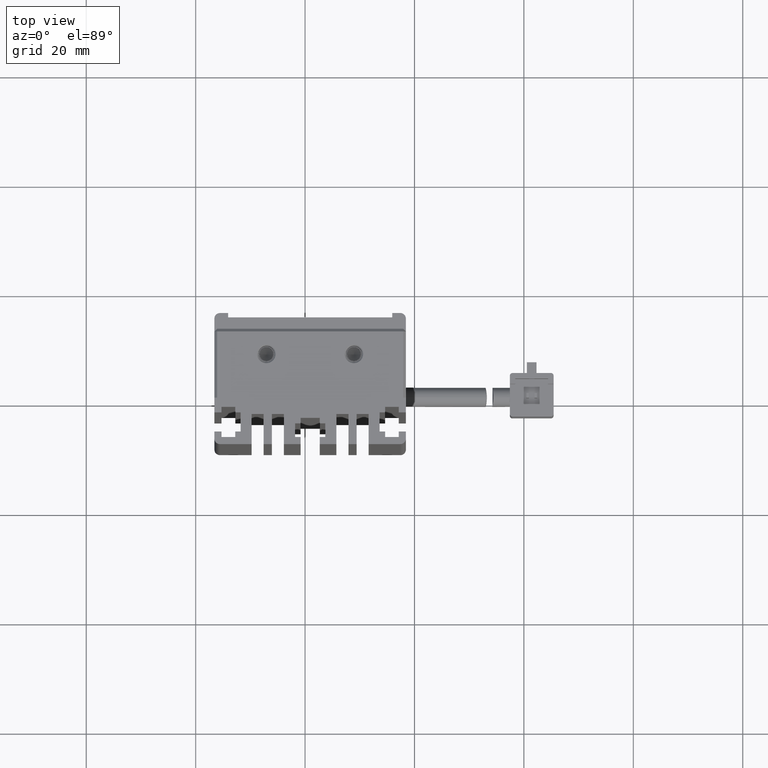
[diagram: clean part render]
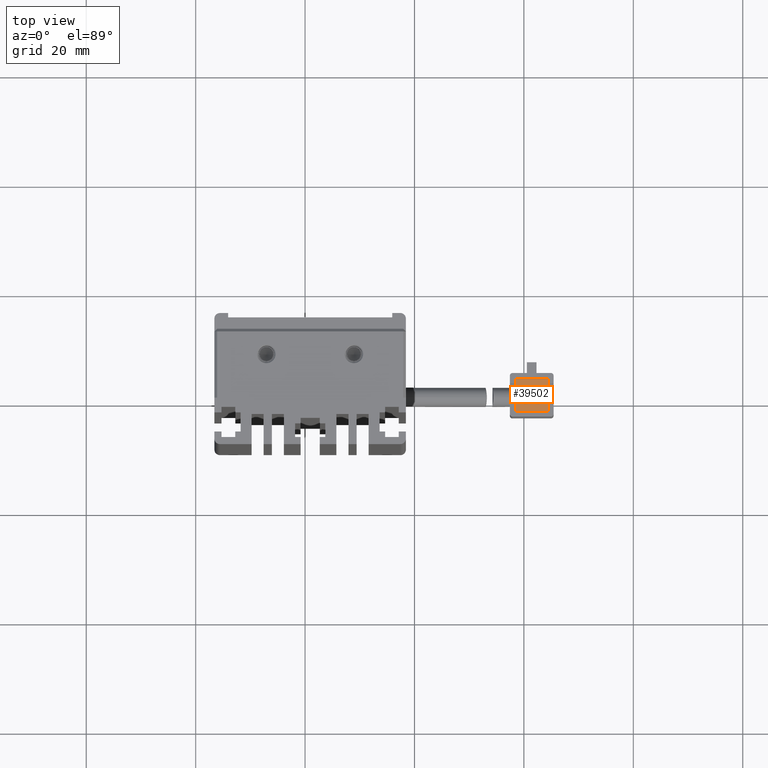
[diagram: same view with one face highlighted and labeled with its STEP entity id]
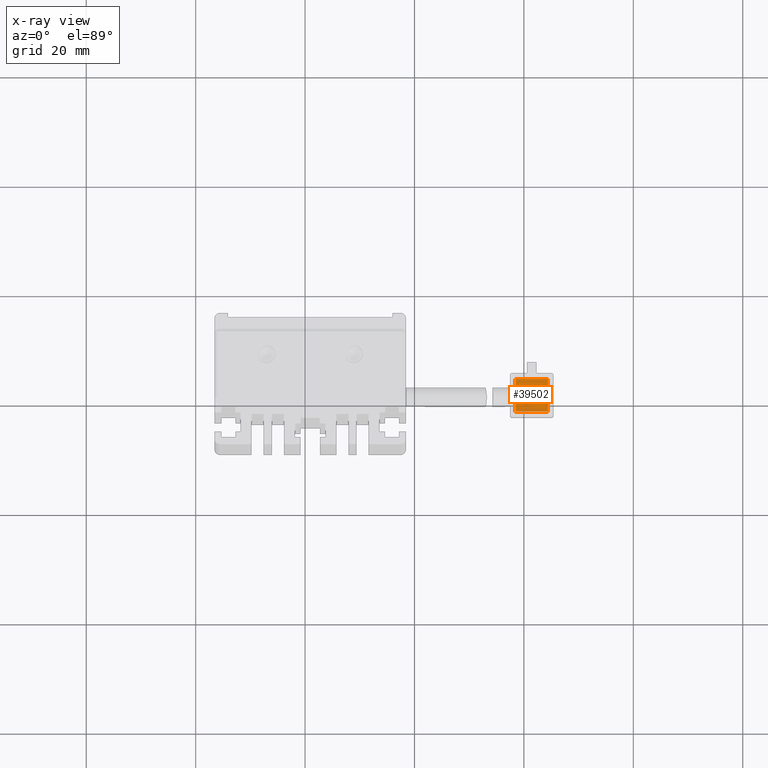
[diagram: x-ray of the same camera — body ghosted, the highlighted face saturated]
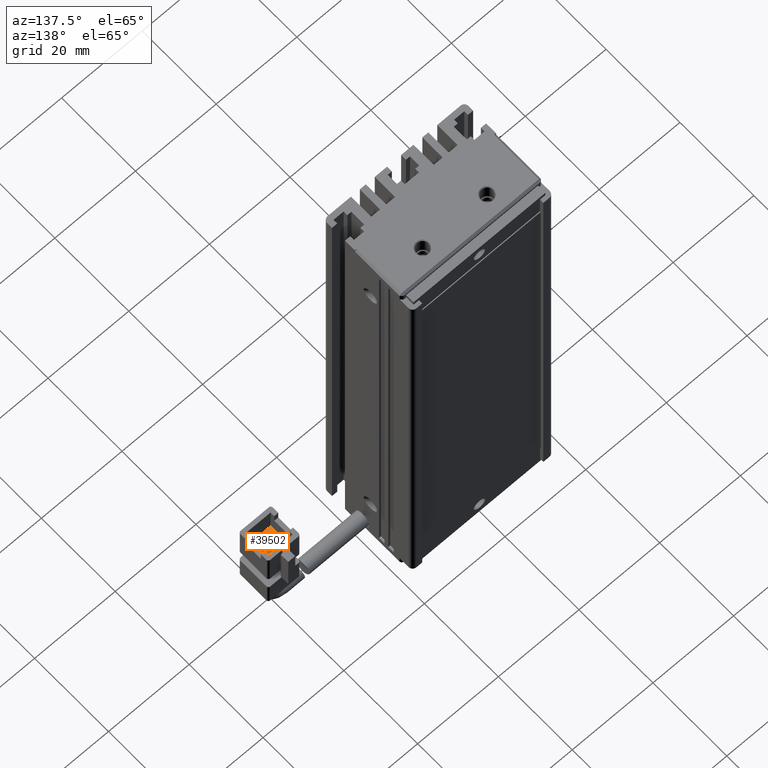
[diagram: same view with one face highlighted and labeled with its STEP entity id]
A machine part, top view. The second image highlights one B-rep face of the part: STEP entity #39502.
The next image is the same camera in x-ray: the body ghosted, the highlighted face saturated — about 0% of this face is hidden behind the body in this view.
A second angle (auxiliary view) of the same face is appended — the face is thin or edge-on in the first view.
In plain terms, the highlighted planar face has unit normal (-0, 0, 1).
Its self-contained STEP definition (entity closure, byte-faithful):
#273 = ORIENTED_EDGE ( 'NONE', *, *, #32258, .T. ) ;
#889 = VERTEX_POINT ( 'NONE', #18756 ) ;
#2838 = ORIENTED_EDGE ( 'NONE', *, *, #14417, .T. ) ;
#3005 = LINE ( 'NONE', #31847, #46675 ) ;
#3463 = CARTESIAN_POINT ( 'NONE',  ( 84.42537974683534700, 24.49073232304861500, -148.9499999999999900 ) ) ;
#4889 = VERTEX_POINT ( 'NONE', #16392 ) ;
#5254 = VECTOR ( 'NONE', #36354, 1000.000000000000000 ) ;
#5587 = VECTOR ( 'NONE', #27814, 1000.000000000000000 ) ;
#5922 = ORIENTED_EDGE ( 'NONE', *, *, #50509, .T. ) ;
#6190 = CARTESIAN_POINT ( 'NONE',  ( 80.42537974683536100, 20.97747452075594100, -148.9499999999999900 ) ) ;
#6196 = EDGE_LOOP ( 'NONE', ( #273, #40966, #2838, #52575 ) ) ;
#6251 = CARTESIAN_POINT ( 'NONE',  ( 82.42537974683536100, 21.77747452075595200, -148.9499999999999900 ) ) ;
#7467 = VERTEX_POINT ( 'NONE', #30469 ) ;
#7716 = EDGE_CURVE ( 'NONE', #19453, #39101, #26910, .T. ) ;
#8352 = CARTESIAN_POINT ( 'NONE',  ( 80.92537974683537500, 18.49073232304860100, -148.9499999999999900 ) ) ;
#10316 = ORIENTED_EDGE ( 'NONE', *, *, #16495, .T. ) ;
#10608 = CARTESIAN_POINT ( 'NONE',  ( 81.92537974683536100, 20.97747452075594800, -148.9499999999999900 ) ) ;
#11447 = VECTOR ( 'NONE', #20581, 1000.000000000000000 ) ;
#11582 = CARTESIAN_POINT ( 'NONE',  ( 81.92537974683536100, 20.97747452075594800, -148.9499999999999900 ) ) ;
#12602 = FACE_BOUND ( 'NONE', #13999, .T. ) ;
#12907 = CARTESIAN_POINT ( 'NONE',  ( 78.42537974683536100, 24.49073232304859700, -148.9499999999999900 ) ) ;
#13436 = LINE ( 'NONE', #12907, #35325 ) ;
#13999 = EDGE_LOOP ( 'NONE', ( #42103, #46184, #35709, #29491 ) ) ;
#14417 = EDGE_CURVE ( 'NONE', #53907, #7467, #27050, .T. ) ;
#14824 = DIRECTION ( 'NONE',  ( 1.000000000000000000, 3.593355771666238000E-015, 8.418767155934777700E-031 ) ) ;
#15926 = VERTEX_POINT ( 'NONE', #22930 ) ;
#16392 = CARTESIAN_POINT ( 'NONE',  ( 80.92537974683536100, 21.77747452075594500, -148.9499999999999900 ) ) ;
#16495 = EDGE_CURVE ( 'NONE', #54469, #889, #30353, .T. ) ;
#16816 = AXIS2_PLACEMENT_3D ( 'NONE', #22149, #18649, #26767 ) ;
#17174 = CARTESIAN_POINT ( 'NONE',  ( 78.42537974683537500, 18.49073232304859000, -148.9499999999999900 ) ) ;
#17782 = VERTEX_POINT ( 'NONE', #6251 ) ;
#18315 = EDGE_CURVE ( 'NONE', #39101, #17782, #40362, .T. ) ;
#18649 = DIRECTION ( 'NONE',  ( -1.041348031262155300E-030, 5.551115123125780200E-017, 1.000000000000000000 ) ) ;
#18756 = CARTESIAN_POINT ( 'NONE',  ( 84.42537974683537500, 18.49073232304861100, -148.9499999999999900 ) ) ;
#19151 = CARTESIAN_POINT ( 'NONE',  ( 84.42537974683534700, 24.49073232304861500, -148.9499999999999900 ) ) ;
#19453 = VERTEX_POINT ( 'NONE', #11582 ) ;
#20005 = VECTOR ( 'NONE', #22967, 1000.000000000000000 ) ;
#20581 = DIRECTION ( 'NONE',  ( 3.304235192336770000E-015, -1.000000000000000000, 5.551115123125780200E-017 ) ) ;
#20619 = EDGE_CURVE ( 'NONE', #4889, #53907, #37931, .T. ) ;
#21780 = VERTEX_POINT ( 'NONE', #29480 ) ;
#22149 = CARTESIAN_POINT ( 'NONE',  ( 78.42537974683537500, 18.49073232304859000, -148.9499999999999900 ) ) ;
#22199 = VERTEX_POINT ( 'NONE', #3463 ) ;
#22930 = CARTESIAN_POINT ( 'NONE',  ( 80.42537974683536100, 21.77747452075594500, -148.9499999999999900 ) ) ;
#22967 = DIRECTION ( 'NONE',  ( 3.304235192336770000E-015, -1.000000000000000000, 5.551115123125780200E-017 ) ) ;
#23244 = FACE_OUTER_BOUND ( 'NONE', #40749, .T. ) ;
#23446 = DIRECTION ( 'NONE',  ( -1.000000000000000000, -3.304235192336770000E-015, -8.579261317967046800E-031 ) ) ;
#23467 = EDGE_CURVE ( 'NONE', #17782, #38658, #31243, .T. ) ;
#23531 = ORIENTED_EDGE ( 'NONE', *, *, #52939, .T. ) ;
#24662 = CARTESIAN_POINT ( 'NONE',  ( 80.42537974683536100, 21.77747452075594500, -148.9499999999999900 ) ) ;
#26210 = DIRECTION ( 'NONE',  ( 1.000000000000000000, 3.412655409585320400E-015, 8.519076007204945700E-031 ) ) ;
#26637 = CARTESIAN_POINT ( 'NONE',  ( 82.42537974683537500, 18.49073232304860400, -148.9499999999999900 ) ) ;
#26767 = DIRECTION ( 'NONE',  ( 1.000000000000000000, 3.304235192336770000E-015, 8.579261317967046800E-031 ) ) ;
#26910 = LINE ( 'NONE', #39879, #37552 ) ;
#27050 = LINE ( 'NONE', #6190, #32345 ) ;
#27215 = EDGE_CURVE ( 'NONE', #7467, #15926, #51375, .T. ) ;
#27502 = DIRECTION ( 'NONE',  ( -3.439760463897458000E-015, 1.000000000000000000, -5.551115123125780200E-017 ) ) ;
#27814 = DIRECTION ( 'NONE',  ( -1.000000000000000000, -3.304235192336770000E-015, -8.579261317967046800E-031 ) ) ;
#28076 = CARTESIAN_POINT ( 'NONE',  ( 81.92537974683536100, 21.77747452075594800, -148.9499999999999900 ) ) ;
#28139 = LINE ( 'NONE', #10608, #5587 ) ;
#29480 = CARTESIAN_POINT ( 'NONE',  ( 78.42537974683534700, 24.49073232304859700, -148.9499999999999900 ) ) ;
#29491 = ORIENTED_EDGE ( 'NONE', *, *, #7716, .T. ) ;
#30353 = LINE ( 'NONE', #44242, #48208 ) ;
#30469 = CARTESIAN_POINT ( 'NONE',  ( 80.42537974683536100, 20.97747452075594100, -148.9499999999999900 ) ) ;
#31243 = LINE ( 'NONE', #26637, #20005 ) ;
#31847 = CARTESIAN_POINT ( 'NONE',  ( 78.42537974683537500, 18.49073232304859000, -148.9499999999999900 ) ) ;
#32205 = DIRECTION ( 'NONE',  ( 3.304235192336770000E-015, -1.000000000000000000, 5.551115123125780200E-017 ) ) ;
#32258 = EDGE_CURVE ( 'NONE', #15926, #4889, #37819, .T. ) ;
#32345 = VECTOR ( 'NONE', #23446, 1000.000000000000000 ) ;
#34745 = DIRECTION ( 'NONE',  ( -1.000000000000000000, -3.304235192336770000E-015, -8.579261317967046800E-031 ) ) ;
#35325 = VECTOR ( 'NONE', #34745, 1000.000000000000000 ) ;
#35709 = ORIENTED_EDGE ( 'NONE', *, *, #47458, .T. ) ;
#36354 = DIRECTION ( 'NONE',  ( 1.000000000000000000, 3.304235192336770000E-015, 8.579261317967046800E-031 ) ) ;
#36484 = DIRECTION ( 'NONE',  ( -3.521075626833870900E-015, 1.000000000000000000, -5.551115123125780200E-017 ) ) ;
#37482 = VECTOR ( 'NONE', #50141, 1000.000000000000000 ) ;
#37552 = VECTOR ( 'NONE', #27502, 1000.000000000000000 ) ;
#37819 = LINE ( 'NONE', #51878, #45079 ) ;
#37931 = LINE ( 'NONE', #8352, #11447 ) ;
#38216 = PLANE ( 'NONE',  #16816 ) ;
#38658 = VERTEX_POINT ( 'NONE', #47638 ) ;
#39101 = VERTEX_POINT ( 'NONE', #42266 ) ;
#39290 = CARTESIAN_POINT ( 'NONE',  ( 80.92537974683536100, 20.97747452075594400, -148.9499999999999900 ) ) ;
#39502 = ADVANCED_FACE ( 'NONE', ( #12602, #23244, #41093 ), #38216, .T. ) ;
#39807 = VECTOR ( 'NONE', #36484, 1000.000000000000000 ) ;
#39879 = CARTESIAN_POINT ( 'NONE',  ( 81.92537974683536100, 21.77747452075594800, -148.9499999999999900 ) ) ;
#40362 = LINE ( 'NONE', #28076, #5254 ) ;
#40749 = EDGE_LOOP ( 'NONE', ( #5922, #51103, #23531, #10316 ) ) ;
#40966 = ORIENTED_EDGE ( 'NONE', *, *, #20619, .T. ) ;
#41093 = FACE_BOUND ( 'NONE', #6196, .T. ) ;
#42103 = ORIENTED_EDGE ( 'NONE', *, *, #18315, .T. ) ;
#42266 = CARTESIAN_POINT ( 'NONE',  ( 81.92537974683536100, 21.77747452075594800, -148.9499999999999900 ) ) ;
#44242 = CARTESIAN_POINT ( 'NONE',  ( 78.42537974683537500, 18.49073232304859000, -148.9499999999999900 ) ) ;
#44398 = EDGE_CURVE ( 'NONE', #22199, #21780, #13436, .T. ) ;
#45079 = VECTOR ( 'NONE', #26210, 1000.000000000000000 ) ;
#46184 = ORIENTED_EDGE ( 'NONE', *, *, #23467, .T. ) ;
#46675 = VECTOR ( 'NONE', #32205, 1000.000000000000000 ) ;
#47458 = EDGE_CURVE ( 'NONE', #38658, #19453, #28139, .T. ) ;
#47638 = CARTESIAN_POINT ( 'NONE',  ( 82.42537974683536100, 20.97747452075594800, -148.9499999999999900 ) ) ;
#48208 = VECTOR ( 'NONE', #14824, 1000.000000000000000 ) ;
#50141 = DIRECTION ( 'NONE',  ( -3.304235192336770000E-015, 1.000000000000000000, -5.551115123125780200E-017 ) ) ;
#50509 = EDGE_CURVE ( 'NONE', #889, #22199, #51052, .T. ) ;
#51052 = LINE ( 'NONE', #19151, #39807 ) ;
#51103 = ORIENTED_EDGE ( 'NONE', *, *, #44398, .T. ) ;
#51375 = LINE ( 'NONE', #24662, #37482 ) ;
#51878 = CARTESIAN_POINT ( 'NONE',  ( 80.42537974683536100, 21.77747452075594500, -148.9499999999999900 ) ) ;
#52575 = ORIENTED_EDGE ( 'NONE', *, *, #27215, .T. ) ;
#52939 = EDGE_CURVE ( 'NONE', #21780, #54469, #3005, .T. ) ;
#53907 = VERTEX_POINT ( 'NONE', #39290 ) ;
#54469 = VERTEX_POINT ( 'NONE', #17174 ) ;